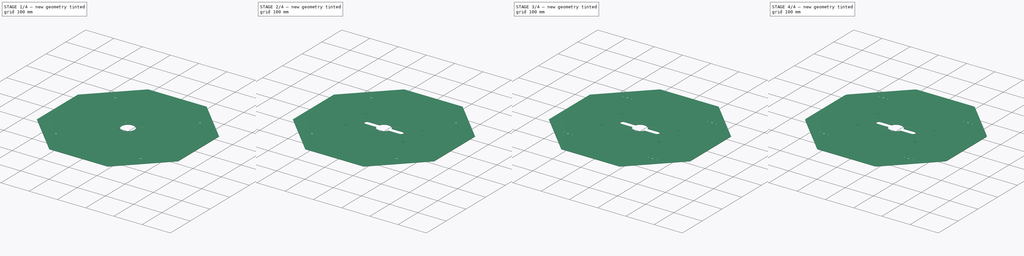
[diagram: build sequence overview — one tinted view per stage of 4, left to right]
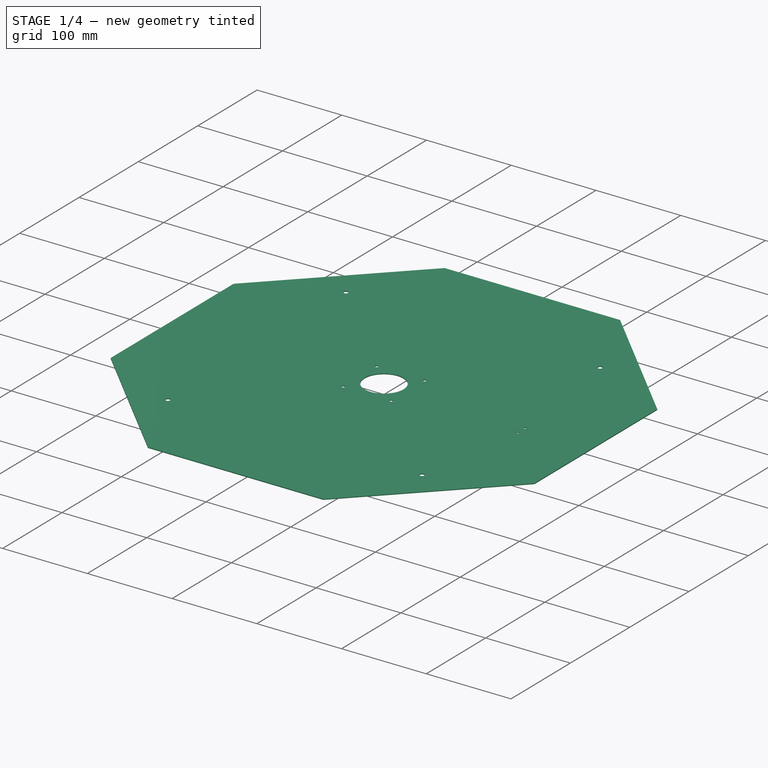
[diagram: stage 1 of 4 — iso view after this stage's code; geometry added in this stage tinted green]
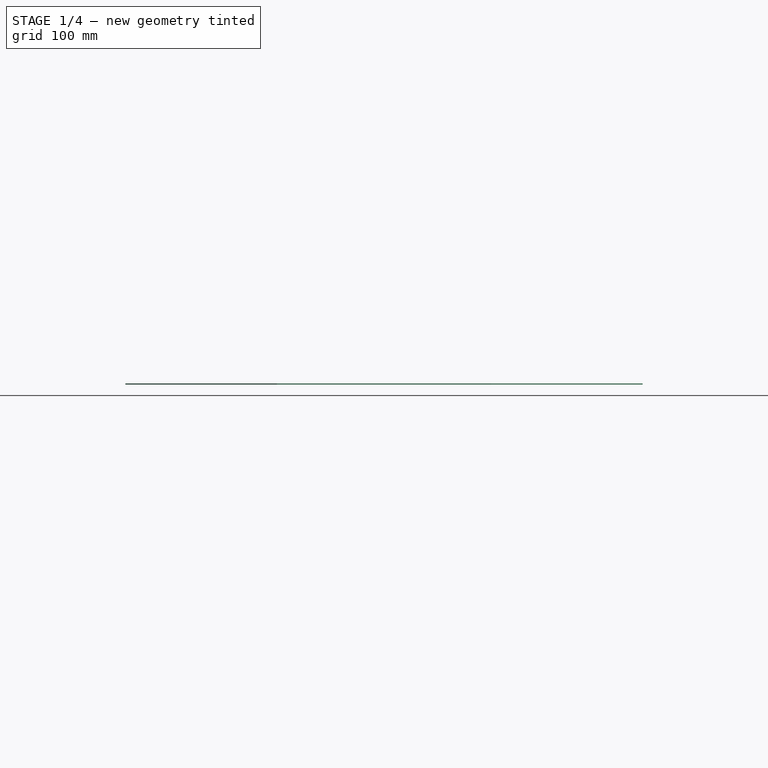
[diagram: stage 1 of 4 — front view after this stage's code; geometry added in this stage tinted green]
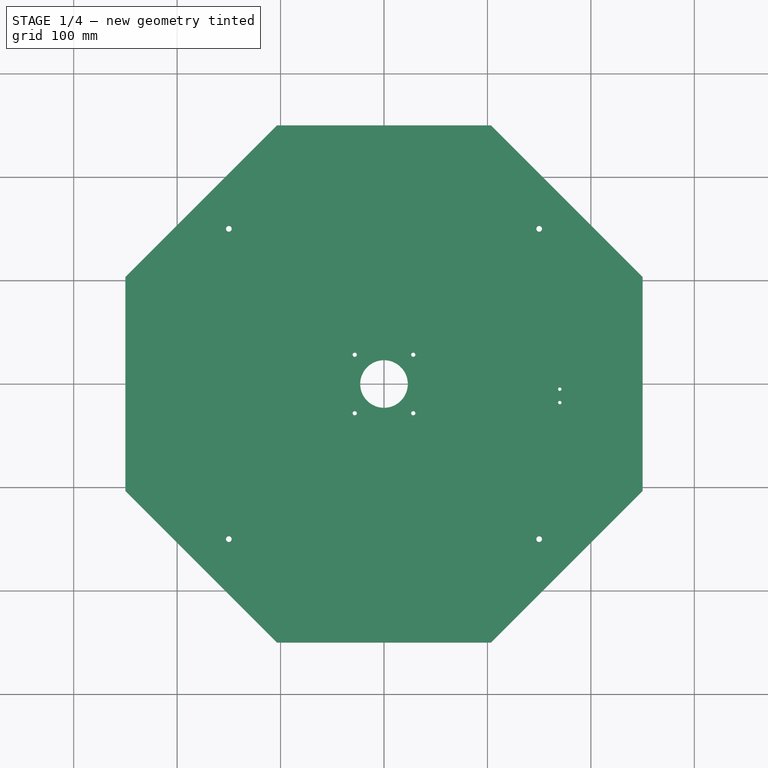
[diagram: stage 1 of 4 — top view after this stage's code; geometry added in this stage tinted green]
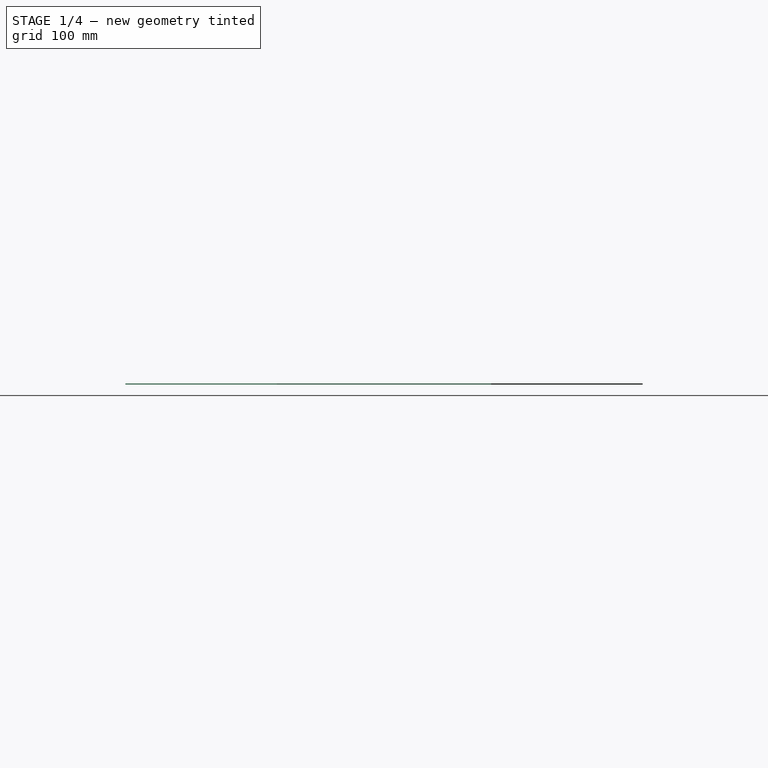
[diagram: stage 1 of 4 — right view after this stage's code; geometry added in this stage tinted green]
FCSTD DOCUMENT  (FreeCAD 0.19R24276 (Git))
Label: Metalicht_v2
License: All rights reserved
LicenseURL: http://en.wikipedia.org/wiki/All_rights_reserved
objects: Sketcher::SketchObject×7, PartDesign::Pocket×6, PartDesign::PolarPattern×2, PartDesign::Pad×1, PartDesign::Fillet×1, PartDesign::Body×1
note: 26 computed .brp shape members not serialized (recipe doc carries the construction recipe); baked Part::Feature solids carry a one-line shape summary decoded from their .brp

FEATURE [Sketcher::SketchObject] Sketch
  FullyConstrained = true
  MapMode = 5
  Support = -> [XY_Plane]
  sketch-geometry (21):
    g0: Circle CenterX=0 CenterY=0 CenterZ=0 NormalX=0 NormalY=0 NormalZ=1 AngleXU=0 Radius=250
    g1: Circle CenterX=0 CenterY=0 CenterZ=0 NormalX=0 NormalY=0 NormalZ=1 AngleXU=0 Radius=23
    g2: Circle CenterX=150 CenterY=150 CenterZ=0 NormalX=0 NormalY=0 NormalZ=1 AngleXU=0 Radius=2.75
    g3: Circle CenterX=-150 CenterY=150 CenterZ=0 NormalX=0 NormalY=0 NormalZ=1 AngleXU=0 Radius=2.75
    g4: Circle CenterX=-150 CenterY=-150 CenterZ=0 NormalX=0 NormalY=0 NormalZ=1 AngleXU=0 Radius=2.75
    g5: Circle CenterX=150 CenterY=-150 CenterZ=0 NormalX=0 NormalY=0 NormalZ=1 AngleXU=0 Radius=2.75
    g6: LineSegment StartX=103.553 StartY=250 StartZ=0 EndX=-103.553 EndY=250 EndZ=0
    g7: LineSegment StartX=-103.553 StartY=250 StartZ=0 EndX=-250 EndY=103.553 EndZ=0
    g8: LineSegment StartX=-250 StartY=103.553 StartZ=0 EndX=-250 EndY=-103.553 EndZ=0
    g9: LineSegment StartX=-250 StartY=-103.553 StartZ=0 EndX=-103.553 EndY=-250 EndZ=0
    g10: LineSegment StartX=-103.553 StartY=-250 StartZ=0 EndX=103.553 EndY=-250 EndZ=0
    g11: LineSegment StartX=103.553 StartY=-250 StartZ=0 EndX=250 EndY=-103.553 EndZ=0
    g12: LineSegment StartX=250 StartY=-103.553 StartZ=0 EndX=250 EndY=103.553 EndZ=0
    g13: LineSegment StartX=250 StartY=103.553 StartZ=0 EndX=103.553 EndY=250 EndZ=0
    g14: Circle CenterX=0 CenterY=0 CenterZ=0 NormalX=0 NormalY=0 NormalZ=1 AngleXU=0 Radius=270.598
    g15: Circle CenterX=28.2843 CenterY=28.2843 CenterZ=0 NormalX=0 NormalY=0 NormalZ=1 AngleXU=0 Radius=2
    g16: Circle CenterX=-28.2843 CenterY=28.2843 CenterZ=0 NormalX=0 NormalY=0 NormalZ=1 AngleXU=0 Radius=2
    g17: Circle CenterX=-28.2843 CenterY=-28.2843 CenterZ=0 NormalX=0 NormalY=0 NormalZ=1 AngleXU=0 Radius=2
    g18: Circle CenterX=28.2843 CenterY=-28.2843 CenterZ=0 NormalX=0 NormalY=0 NormalZ=1 AngleXU=0 Radius=2
    g19: LineSegment StartX=-28.2843 StartY=28.2843 StartZ=0 EndX=28.2843 EndY=28.2843 EndZ=0
    g20: LineSegment StartX=-28.2843 StartY=28.2843 StartZ=0 EndX=-28.2843 EndY=-28.2843 EndZ=0
  constraints (46):
    c: Coincident(g0,g-1)
    c: Diameter(g0) = 500
    c: Coincident(g1,g0)
    c: Diameter(g1) = 46
    c: Equal(g5,g4)
    c: Equal(g4,g3)
    c: Equal(g3,g2)
    c: Diameter(g2) = 5.5
    c: Symmetric(g2,g5,g-1)
    c: Symmetric(g5,g4,g-2)
    c: Symmetric(g3,g2,g-2)
    c: DistanceX(g3,g2) = 300
    c: DistanceY(g5,g2) = 300
    c: Coincident(g6,g7)
    c: Coincident(g7,g8)
    c: Coincident(g8,g9)
    c: Coincident(g9,g10)
    c: Coincident(g10,g11)
    c: Coincident(g11,g12)
    c: Coincident(g12,g13)
    c: Coincident(g13,g6)
    c: Equal(g6, g7-g13) x7
    c: PointOnObject(g6,g14)
    c: PointOnObject(g7,g14)
    c: PointOnObject(g8,g14)
    c: PointOnObject(g9,g14)
    c: PointOnObject(g10,g14)
    c: PointOnObject(g11,g14)
    c: PointOnObject(g12,g14)
    c: PointOnObject(g13,g14)
    c: Coincident(g14,g1)
    c: Tangent(g0,g6)
    c: Horizontal(g6)
    c: Symmetric(g16,g15,g-2)
    c: Symmetric(g17,g16,g-1)
    c: Symmetric(g17,g18,g-2)
    c: Equal(g16,g17)
    c: Equal(g17,g18)
    c: Equal(g18,g15)
    c: Distance(g16,g1) = 40
    c: Coincident(g19,g16)
    c: Coincident(g19,g15)
    c: Coincident(g20,g16)
    c: Coincident(g20,g17)
    c: Equal(g20,g19)
    c: Diameter(g16) = 4
FEATURE [PartDesign::Pad] Pad
  Direction = (1,1,1)
  Length = 1
  Length2 = 100
  Profile = -> Sketch
  Type = 0
FEATURE [Sketcher::SketchObject] Sketch001
  FullyConstrained = true
  MapMode = 5
  Support = -> [XY_Plane]
  sketch-geometry (3):
    g0: Circle CenterX=169.926 CenterY=-5 CenterZ=0 NormalX=0 NormalY=0 NormalZ=1 AngleXU=0 Radius=1.65
    g1: Circle CenterX=169.926 CenterY=-18 CenterZ=0 NormalX=0 NormalY=0 NormalZ=1 AngleXU=0 Radius=1.65
    g2: LineSegment StartX=169.926 StartY=-5 StartZ=0 EndX=169.926 EndY=-18 EndZ=0
  constraints (8):
    c: Equal(g1,g0)
    c: Diameter(g0) = 3.3
    c: Distance(g1,g0) = 13
    c: Coincident(g2,g0)
    c: Coincident(g2,g1)
    c: Angle(g-1,g2) = 1.5708
    c: DistanceY(g0,g-1) = 5
    c: Distance(g-1,g0) = 170
FEATURE [PartDesign::Pocket] Pocket
  BaseFeature = -> Pad
  Length = 5
  Length2 = 100
  Profile = -> Sketch001
  Reversed = true
  Type = 1
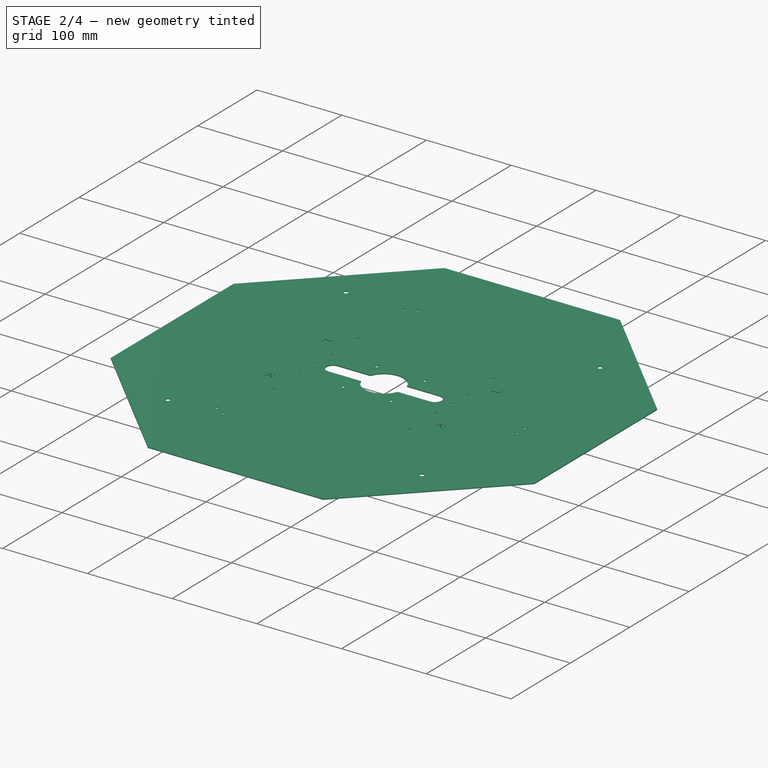
[diagram: stage 2 of 4 — iso view after this stage's code; geometry added in this stage tinted green]
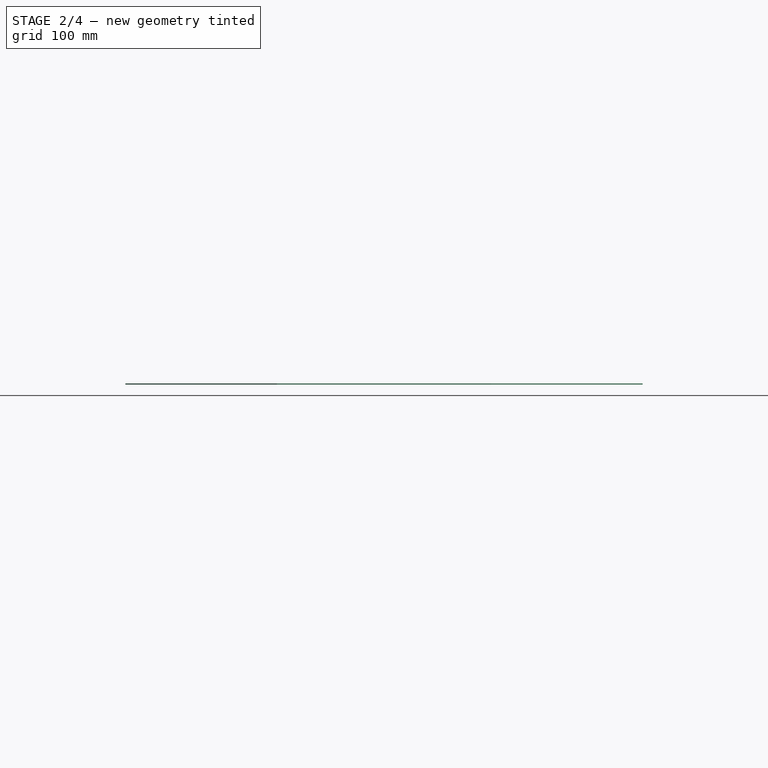
[diagram: stage 2 of 4 — front view after this stage's code; geometry added in this stage tinted green]
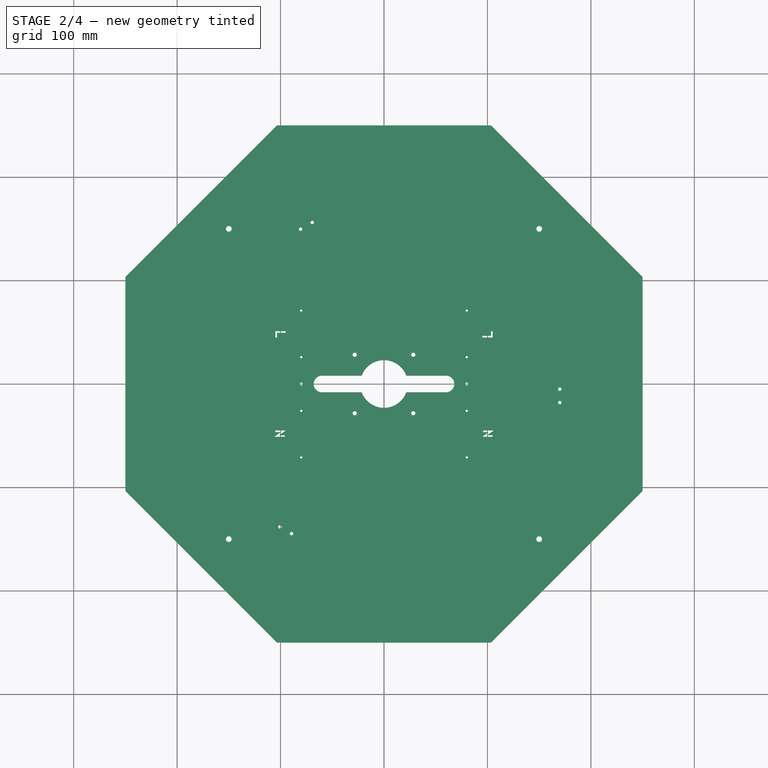
[diagram: stage 2 of 4 — top view after this stage's code; geometry added in this stage tinted green]
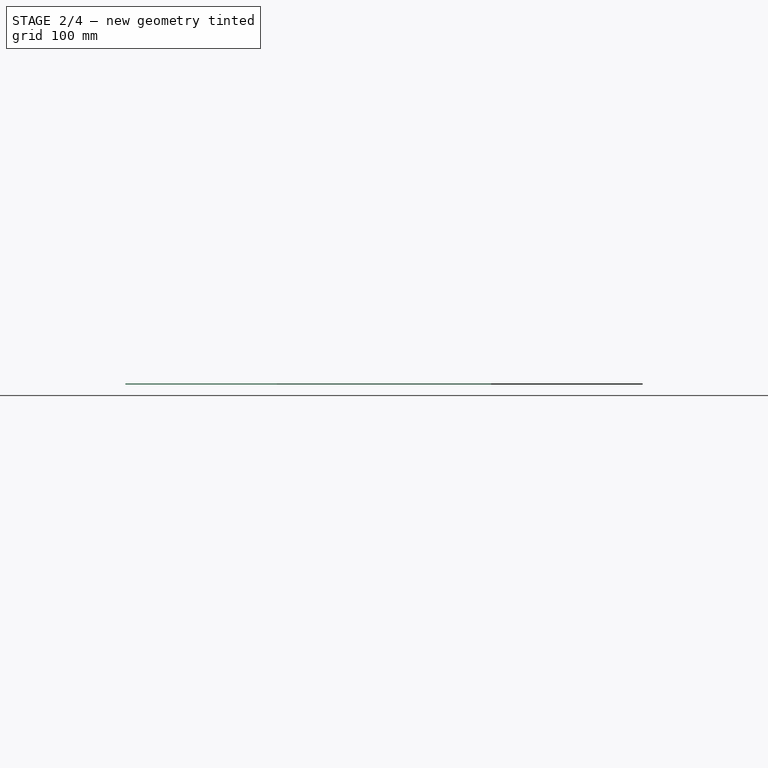
[diagram: stage 2 of 4 — right view after this stage's code; geometry added in this stage tinted green]
FEATURE [PartDesign::PolarPattern] PolarPattern
  Angle = 360
  Axis = -> Sketch001 [N_Axis]
  BaseFeature = -> Pocket
  Occurrences = 3
  Originals = -> [Pocket]
FEATURE [Sketcher::SketchObject] Sketch002
  FullyConstrained = true
  MapMode = 5
  Support = -> [XY_Plane]
  sketch-geometry (4):
    g0: ArcOfCircle CenterX=-60 CenterY=0 CenterZ=0 NormalX=0 NormalY=0 NormalZ=1 AngleXU=0 Radius=8 StartAngle=1.5708 EndAngle=4.71239
    g1: ArcOfCircle CenterX=60 CenterY=0 CenterZ=0 NormalX=0 NormalY=0 NormalZ=1 AngleXU=0 Radius=8 StartAngle=4.71239 EndAngle=7.85398
    g2: LineSegment StartX=-60 StartY=-8 StartZ=0 EndX=60 EndY=-8 EndZ=0
    g3: LineSegment StartX=-60 StartY=8 StartZ=0 EndX=60 EndY=8 EndZ=0
  constraints (9):
    c: Tangent(g0,g3) = 1.5708
    c: Tangent(g0,g2) = -1.5708
    c: Tangent(g2,g1) = -1.5708
    c: Tangent(g3,g1) = 1.5708
    c: Horizontal(g2)
    c: PointOnObject(g0,g-1)
    c: Symmetric(g0,g1,g-2)
    c: Radius(g1) = 8
    c: DistanceX(g3,g3) = 120
FEATURE [PartDesign::Pocket] Pocket001
  BaseFeature = -> PolarPattern
  Length = 5
  Length2 = 100
  Profile = -> Sketch002
  Reversed = true
  Type = 0
FEATURE [Sketcher::SketchObject] Sketch003
  FullyConstrained = true
  MapMode = 5
  Support = -> [XY_Plane]
  sketch-geometry (42):
    g0: Circle CenterX=-80 CenterY=71 CenterZ=0 NormalX=0 NormalY=0 NormalZ=1 AngleXU=0 Radius=1.1
    g1: Circle CenterX=-80 CenterY=26 CenterZ=0 NormalX=0 NormalY=0 NormalZ=1 AngleXU=0 Radius=1.1
    g2: Circle CenterX=-80 CenterY=-26 CenterZ=0 NormalX=0 NormalY=0 NormalZ=1 AngleXU=0 Radius=1.1
    g3: Circle CenterX=-80 CenterY=-71 CenterZ=0 NormalX=0 NormalY=0 NormalZ=1 AngleXU=0 Radius=1.1
    g4: Circle CenterX=-80 CenterY=0 CenterZ=0 NormalX=0 NormalY=0 NormalZ=1 AngleXU=0 Radius=1.45
    g5: LineSegment StartX=-95 StartY=51 StartZ=0 EndX=-105 EndY=51 EndZ=0
    g6: LineSegment StartX=-105 StartY=51 StartZ=0 EndX=-105 EndY=45 EndZ=0
    g7: LineSegment StartX=-105 StartY=45 StartZ=0 EndX=-103.5 EndY=45 EndZ=0
    g8: LineSegment StartX=-103.5 StartY=45 StartZ=0 EndX=-103.5 EndY=49.5 EndZ=0
    g9: LineSegment StartX=-103.5 StartY=49.5 StartZ=0 EndX=-95 EndY=49.5 EndZ=0
    g10: LineSegment StartX=-95 StartY=49.5 StartZ=0 EndX=-95 EndY=51 EndZ=0
    g11: LineSegment StartX=-105 StartY=-45 StartZ=0 EndX=-95 EndY=-45 EndZ=0
    g12: LineSegment StartX=-95 StartY=-45 StartZ=0 EndX=-101.312 EndY=-49.5 EndZ=0
    g13: LineSegment StartX=-101.312 StartY=-49.5 StartZ=0 EndX=-96 EndY=-49.5 EndZ=0
    g14: LineSegment StartX=-96 StartY=-49.5 StartZ=0 EndX=-96 EndY=-51 EndZ=0
    g15: LineSegment StartX=-96 StartY=-51 StartZ=0 EndX=-106 EndY=-51 EndZ=0
    g16: LineSegment StartX=-106 StartY=-51 StartZ=0 EndX=-99.688 EndY=-46.5 EndZ=0
    g17: LineSegment StartX=-99.688 StartY=-46.5 StartZ=0 EndX=-105 EndY=-46.5 EndZ=0
    g18: LineSegment StartX=-105 StartY=-46.5 StartZ=0 EndX=-105 EndY=-45 EndZ=0
    g19: LineSegment StartX=-99.688 StartY=-46.5 StartZ=0 EndX=-98.8172 EndY=-47.7214 EndZ=0
    g20: LineSegment StartX=-105 StartY=-45 StartZ=0 EndX=-105 EndY=45 EndZ=0
    g21: Circle CenterX=80 CenterY=71 CenterZ=0 NormalX=0 NormalY=0 NormalZ=1 AngleXU=0 Radius=1.1
    g22: Circle CenterX=80 CenterY=26 CenterZ=0 NormalX=0 NormalY=0 NormalZ=1 AngleXU=0 Radius=1.1
    g23: Circle CenterX=80 CenterY=0 CenterZ=0 NormalX=0 NormalY=0 NormalZ=1 AngleXU=0 Radius=1.45
    g24: Circle CenterX=80 CenterY=-26 CenterZ=0 NormalX=0 NormalY=0 NormalZ=1 AngleXU=0 Radius=1.1
    g25: Circle CenterX=80 CenterY=-71 CenterZ=0 NormalX=0 NormalY=0 NormalZ=1 AngleXU=0 Radius=1.1
    g26: LineSegment StartX=105 StartY=-51 StartZ=0 EndX=95 EndY=-51 EndZ=0
    g27: LineSegment StartX=95 StartY=-51 StartZ=0 EndX=101.312 EndY=-46.5 EndZ=0
    g28: LineSegment StartX=101.312 StartY=-46.5 StartZ=0 EndX=96 EndY=-46.5 EndZ=0
    g29: LineSegment StartX=96 StartY=-46.5 StartZ=0 EndX=96 EndY=-45 EndZ=0
    g30: LineSegment StartX=96 StartY=-45 StartZ=0 EndX=106 EndY=-45 EndZ=0
    g31: LineSegment StartX=106 StartY=-45 StartZ=0 EndX=99.688 EndY=-49.5 EndZ=0
    g32: LineSegment StartX=99.688 StartY=-49.5 StartZ=0 EndX=105 EndY=-49.5 EndZ=0
    g33: LineSegment StartX=105 StartY=-49.5 StartZ=0 EndX=105 EndY=-51 EndZ=0
    g34: LineSegment StartX=99.688 StartY=-49.5 StartZ=0 EndX=98.8172 EndY=-48.2786 EndZ=0
    g35: LineSegment StartX=95 StartY=45 StartZ=0 EndX=105 EndY=45 EndZ=0
    g36: LineSegment StartX=105 StartY=45 StartZ=0 EndX=105 EndY=51 EndZ=0
    g37: LineSegment StartX=105 StartY=51 StartZ=0 EndX=103.5 EndY=51 EndZ=0
    g38: LineSegment StartX=103.5 StartY=51 StartZ=0 EndX=103.5 EndY=46.5 EndZ=0
    g39: LineSegment StartX=103.5 StartY=46.5 StartZ=0 EndX=95 EndY=46.5 EndZ=0
    g40: LineSegment StartX=95 StartY=46.5 StartZ=0 EndX=95 EndY=45 EndZ=0
    g41: LineSegment StartX=105 StartY=45 StartZ=0 EndX=105 EndY=-45 EndZ=0
  constraints (116):
    c: Equal(g3,g2)
    c: Equal(g2,g1)
    c: Equal(g1,g0)
    c: Vertical(g0,g1)
    c: Symmetric(g0,g3,g-1)
    c: Symmetric(g1,g2,g-1)
    c: DistanceY(g1,g0) = 45
    c: DistanceY(g-1,g1) = 26
    c: Diameter(g0) = 2.2
    c: DistanceX(g1,g-1) = 80
    c: PointOnObject(g4,g-1)
    c: Vertical(g1,g4)
    c: Diameter(g4) = 2.9
    c: Coincident(g5,g6)
    c: Coincident(g6,g7)
    c: Horizontal(g7)
    c: Coincident(g7,g8)
    c: Vertical(g8)
    c: Coincident(g8,g9)
    c: Horizontal(g9)
    c: Coincident(g9,g10)
    c: Coincident(g10,g5)
    c: Vertical(g10)
    c: Horizontal(g11)
    c: Coincident(g11,g12)
    c: Coincident(g12,g13)
    c: Coincident(g13,g14)
    c: Vertical(g14)
    c: Coincident(g14,g15)
    c: Horizontal(g15)
    c: Coincident(g15,g16)
    c: Coincident(g16,g17)
    c: Coincident(g17,g18)
    c: Coincident(g18,g11)
    c: Vertical(g18)
    c: Horizontal(g13)
    c: Horizontal(g17)
    c: Parallel(g16,g12)
    c: Coincident(g19,g16)
    c: Coincident(g20,g11)
    c: Coincident(g20,g6)
    c: Perpendicular(g19,g16)
    c: Equal(g19,g14)
    c: DistanceY(g14,g14) = 1.5
    c: DistanceX(g13,g11) = 1
    c: DistanceX(g15,g17) = 1
    c: DistanceX(g11,g11) = 10
    c: Vertical(g6)
    c: Horizontal(g5)
    c: Equal(g10,g14)
    c: DistanceY(g6,g6) = 6
    c: DistanceX(g5,g5) = 10
    c: Symmetric(g6,g11,g-1)
    c: DistanceY(g20,g20) = 90
    c: DistanceX(g17,g2) = 25
    c: PointOnObject(g19,g12)
    c: Equal(g18,g19)
    c: DistanceY(g14,g11) = 6
    c: Equal(g25,g24)
    c: Equal(g24,g22)
    c: Equal(g22,g21)
    c: Equal(g25,g3)
    c: Symmetric(g3,g25,g-2)
    c: Symmetric(g2,g24,g-2)
    c: Symmetric(g22,g1,g-2)
    c: Symmetric(g0,g21,g-2)
    c: Symmetric(g23,g4,g-2)
    c: Equal(g4,g23)
    c: Equal(g7,g10)
    c: Horizontal(g26)
    c: Coincident(g26,g27)
    c: Coincident(g27,g28)
    c: Horizontal(g28)
    c: Coincident(g28,g29)
    c: Vertical(g29)
    c: Coincident(g29,g30)
    c: Horizontal(g30)
    c: Coincident(g30,g31)
    c: Coincident(g31,g32)
    c: Horizontal(g32)
    c: Coincident(g32,g33)
    c: Coincident(g33,g26)
    c: Vertical(g33)
    c: Coincident(g34,g31)
    c: PointOnObject(g34,g27)
    c: Perpendicular(g27,g34)
    c: Parallel(g31,g27)
    c: Equal(g33,g29)
    c: Equal(g29,g34)
    c: Horizontal(g35)
    c: Coincident(g35,g36)
    c: Vertical(g36)
    c: Coincident(g36,g37)
    c: Horizontal(g37)
    c: Coincident(g37,g38)
    c: Vertical(g38)
    c: Coincident(g38,g39)
    c: Horizontal(g39)
    c: Coincident(g39,g40)
    c: Coincident(g40,g35)
    c: Vertical(g40)
    c: Coincident(g41,g35)
    c: PointOnObject(g41,g30)
    c: Vertical(g41)
    c: Symmetric(g35,g6,g-2)
    c: Equal(g9,g39)
    c: Equal(g37,g40)
    c: Equal(g40,g7)
    c: Equal(g36,g6)
    c: PointOnObject(g32,g41)
    c: Equal(g30,g15)
    c: Parallel(g27,g16)
    c: Equal(g41,g20)
    c: Equal(g29,g19)
    c: Equal(g31,g12)
    c: Equal(g28,g32)
FEATURE [PartDesign::Pocket] Pocket002
  BaseFeature = -> Pocket001
  Length = 5
  Length2 = 100
  Profile = -> Sketch003
  Reversed = true
  Type = 1
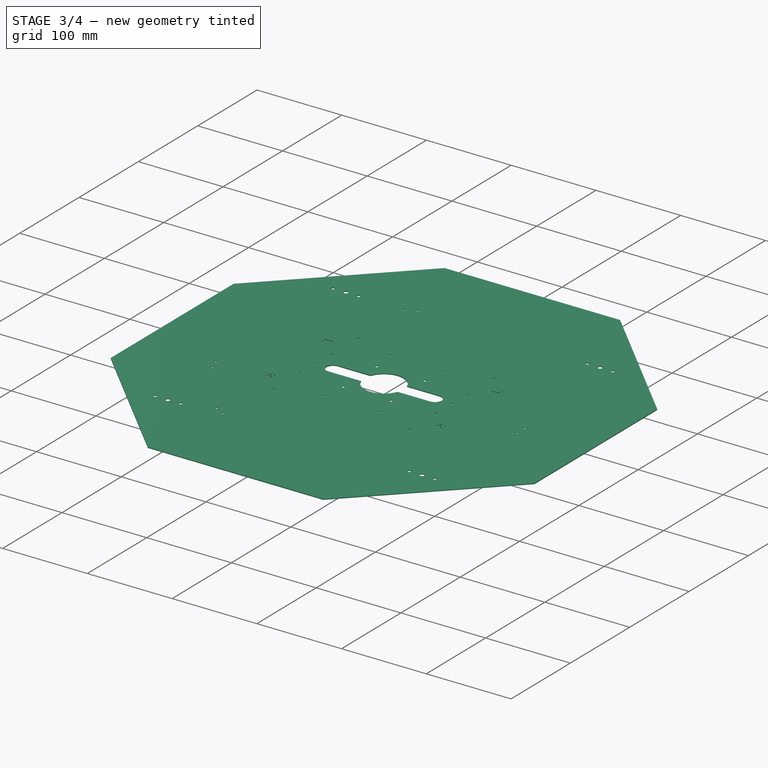
[diagram: stage 3 of 4 — iso view after this stage's code; geometry added in this stage tinted green]
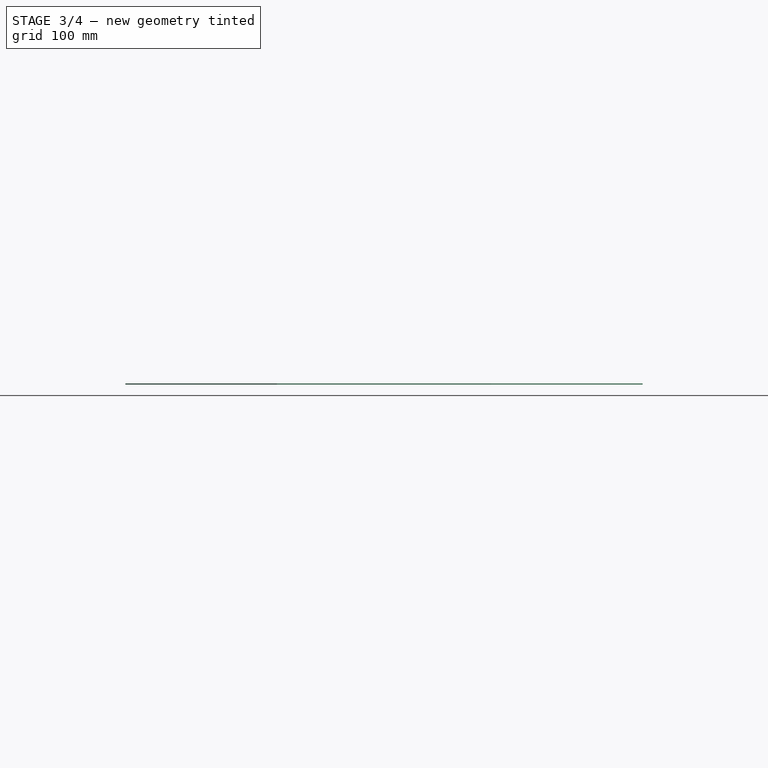
[diagram: stage 3 of 4 — front view after this stage's code; geometry added in this stage tinted green]
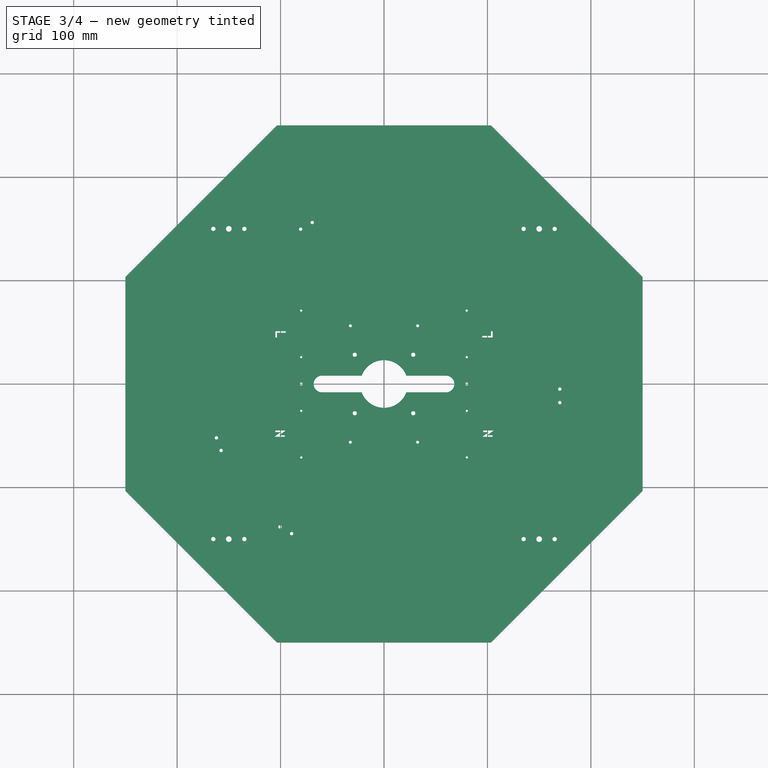
[diagram: stage 3 of 4 — top view after this stage's code; geometry added in this stage tinted green]
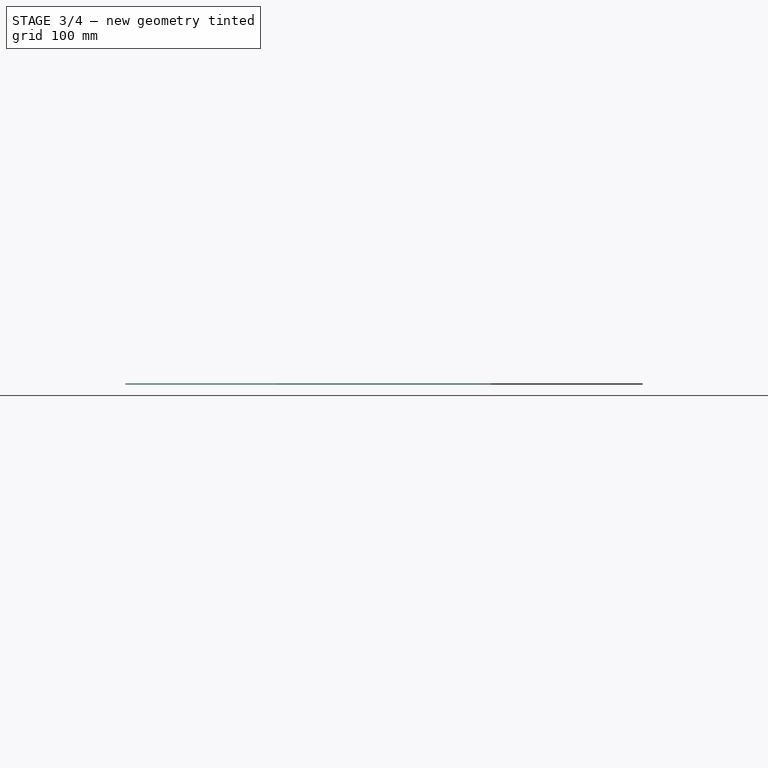
[diagram: stage 3 of 4 — right view after this stage's code; geometry added in this stage tinted green]
FEATURE [Sketcher::SketchObject] Sketch004
  FullyConstrained = true
  MapMode = 5
  Support = -> [XY_Plane]
  sketch-geometry (6):
    g0: Circle CenterX=-32.5 CenterY=-56.2917 CenterZ=0 NormalX=0 NormalY=0 NormalZ=1 AngleXU=0 Radius=1.45
    g1: Circle CenterX=32.5 CenterY=-56.2917 CenterZ=0 NormalX=0 NormalY=0 NormalZ=1 AngleXU=0 Radius=1.45
    g2: Circle CenterX=-32.5 CenterY=56.2917 CenterZ=0 NormalX=0 NormalY=0 NormalZ=1 AngleXU=0 Radius=1.45
    g3: Circle CenterX=32.5 CenterY=56.2917 CenterZ=0 NormalX=0 NormalY=0 NormalZ=1 AngleXU=0 Radius=1.45
    g4: Circle CenterX=0 CenterY=0 CenterZ=0 NormalX=0 NormalY=0 NormalZ=1 AngleXU=0 Radius=65
    g5: LineSegment StartX=0 StartY=0 StartZ=0 EndX=32.5 EndY=56.2917 EndZ=0
  constraints (13):
    c: Coincident(g4,g-1)
    c: PointOnObject(g3,g4)
    c: Radius(g4) = 65
    c: Equal(g2,g0)
    c: Equal(g0,g1)
    c: Equal(g1,g3)
    c: Symmetric(g2,g3,g-2)
    c: Symmetric(g0,g1,g-2)
    c: Symmetric(g1,g3,g-1)
    c: Coincident(g5,g-1)
    c: Coincident(g5,g3)
    c: Angle(g5,g-2) = 0.523599
    c: Diameter(g3) = 2.9
FEATURE [PartDesign::Pocket] Pocket003
  BaseFeature = -> Pocket002
  Length = 5
  Length2 = 100
  Profile = -> Sketch004
  Reversed = true
  Type = 1
FEATURE [Sketcher::SketchObject] Sketch005
  FullyConstrained = true
  MapMode = 5
  Support = -> [XY_Plane]
  sketch-geometry (10):
    g0: Circle CenterX=135 CenterY=150 CenterZ=0 NormalX=0 NormalY=0 NormalZ=1 AngleXU=0 Radius=2.1
    g1: Circle CenterX=165 CenterY=150 CenterZ=0 NormalX=0 NormalY=0 NormalZ=1 AngleXU=0 Radius=2.1
    g2: LineSegment StartX=0 StartY=0 StartZ=0 EndX=150 EndY=150 EndZ=0
    g3: Circle CenterX=-165 CenterY=150 CenterZ=0 NormalX=0 NormalY=0 NormalZ=1 AngleXU=0 Radius=2.1
    g4: Circle CenterX=-135 CenterY=150 CenterZ=0 NormalX=0 NormalY=0 NormalZ=1 AngleXU=0 Radius=2.1
    g5: Circle CenterX=-165 CenterY=-150 CenterZ=0 NormalX=0 NormalY=0 NormalZ=1 AngleXU=0 Radius=2.1
    g6: Circle CenterX=-135 CenterY=-150 CenterZ=0 NormalX=0 NormalY=0 NormalZ=1 AngleXU=0 Radius=2.1
    g7: Circle CenterX=135 CenterY=-150 CenterZ=0 NormalX=0 NormalY=0 NormalZ=1 AngleXU=0 Radius=2.1
    g8: Circle CenterX=165 CenterY=-150 CenterZ=0 NormalX=0 NormalY=0 NormalZ=1 AngleXU=0 Radius=2.1
    g9: LineSegment StartX=150 StartY=150 StartZ=0 EndX=150 EndY=0 EndZ=0
  constraints (23):
    c: Horizontal(g0,g1)
    c: Coincident(g2,g-1)
    c: Equal(g7,g6)
    c: Equal(g6,g5)
    c: Equal(g5,g8)
    c: Equal(g8,g3)
    c: Equal(g3,g4)
    c: Equal(g4,g0)
    c: Equal(g0,g1)
    c: Horizontal(g2,g1)
    c: DistanceX(g2,g2) = 150
    c: DistanceY(g2,g2) = 150
    c: Coincident(g9,g2)
    c: PointOnObject(g9,g-1)
    c: Symmetric(g0,g1,g9)
    c: DistanceX(g0,g1) = 30
    c: Diameter(g1) = 4.2
    c: Symmetric(g0,g4,g-2)
    c: Symmetric(g3,g1,g-2)
    c: Symmetric(g0,g7,g-1)
    c: Symmetric(g1,g8,g-1)
    c: Symmetric(g5,g8,g-2)
    c: Symmetric(g6,g7,g-2)
FEATURE [PartDesign::Pocket] Pocket004
  BaseFeature = -> Pocket003
  Length = 5
  Length2 = 100
  Profile = -> Sketch005
  Reversed = true
  Type = 1
FEATURE [Sketcher::SketchObject] Sketch006
  FullyConstrained = true
  MapMode = 5
  Support = -> [XY_Plane]
  sketch-geometry (4):
    g0: LineSegment StartX=0 StartY=0 StartZ=0 EndX=-159.748 EndY=-58.1434 EndZ=0
    g1: Circle CenterX=-161.971 CenterY=-52.0354 CenterZ=0 NormalX=0 NormalY=0 NormalZ=1 AngleXU=0 Radius=1.65
    g2: Circle CenterX=-157.525 CenterY=-64.2514 CenterZ=0 NormalX=0 NormalY=0 NormalZ=1 AngleXU=0 Radius=1.65
    g3: LineSegment StartX=-161.971 StartY=-52.0354 StartZ=0 EndX=-157.525 EndY=-64.2514 EndZ=0
  constraints (10):
    c: Coincident(g0,g-1)
    c: Distance(g0) = 170
    c: Angle(g0,g-1) = 2.79253
    c: Symmetric(g1,g2,g0)
    c: Equal(g1,g2)
    c: Coincident(g3,g1)
    c: Coincident(g3,g2)
    c: PointOnObject(g0,g3)
    c: Diameter(g1) = 3.3
    c: Distance(g3) = 13
FEATURE [PartDesign::Pocket] Pocket005
  BaseFeature = -> Pocket004
  Length = 5
  Length2 = 100
  Profile = -> Sketch006
  Reversed = true
  Type = 1
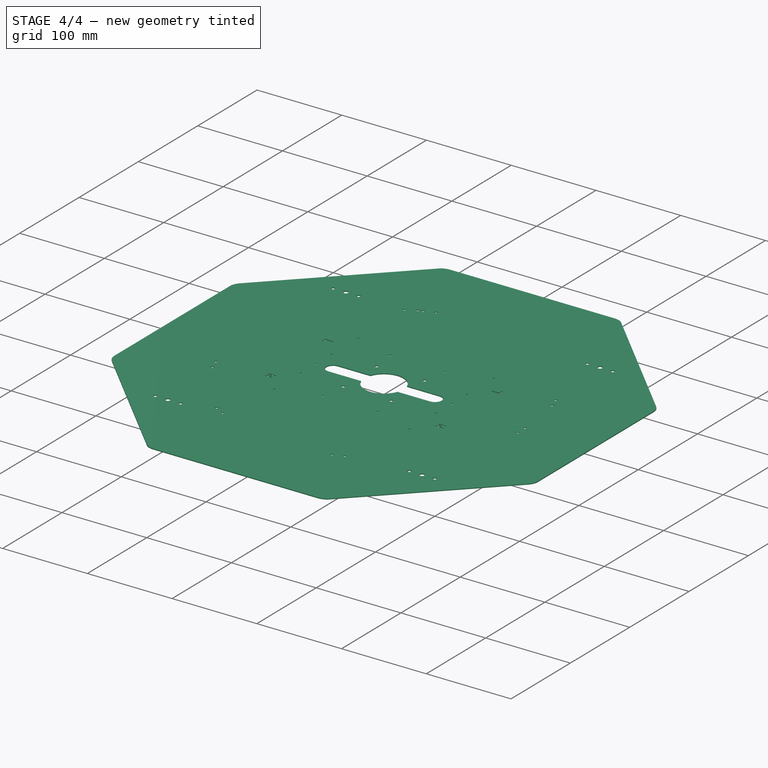
[diagram: stage 4 of 4 — iso view after this stage's code; geometry added in this stage tinted green]
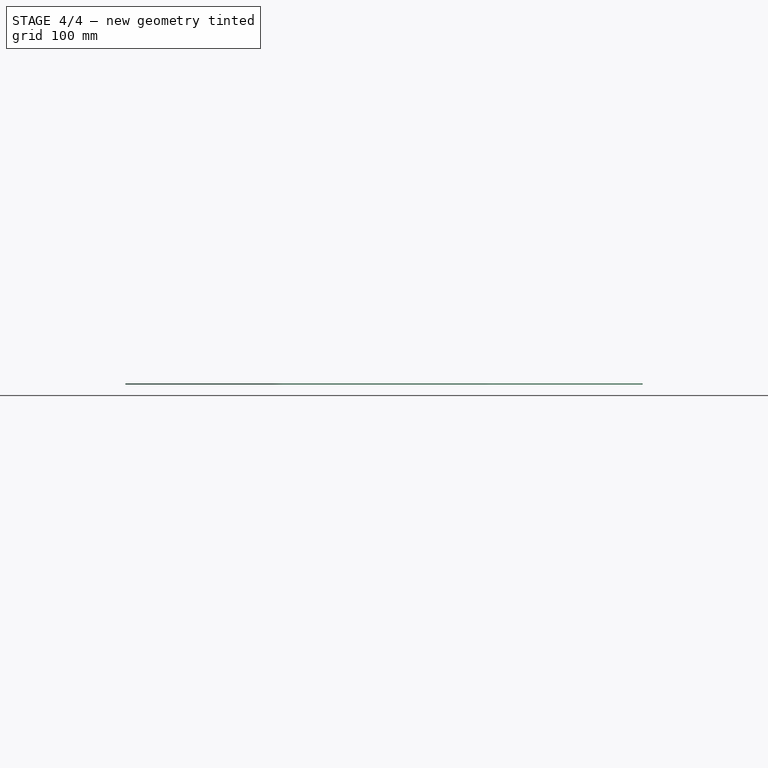
[diagram: stage 4 of 4 — front view after this stage's code; geometry added in this stage tinted green]
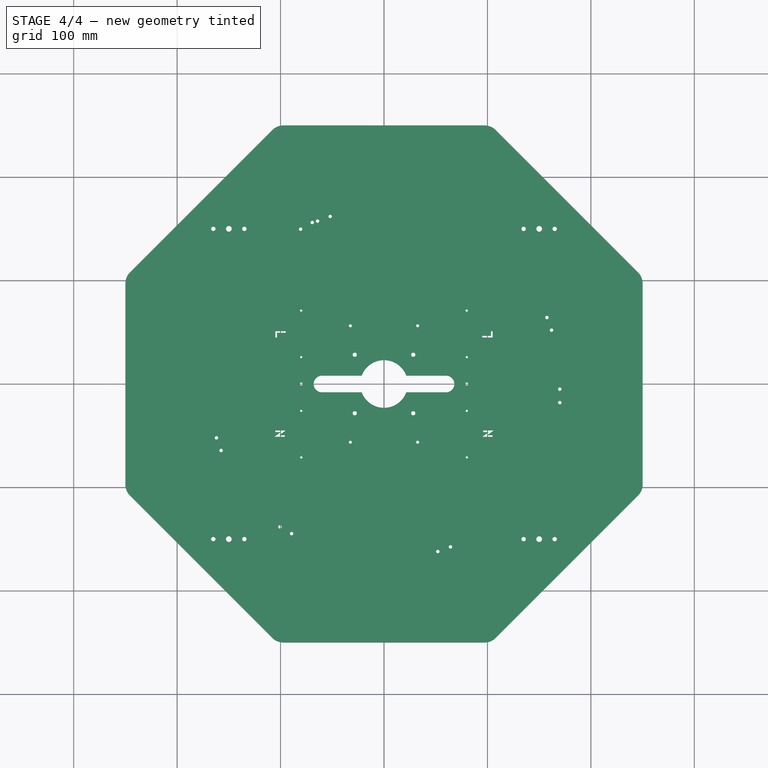
[diagram: stage 4 of 4 — top view after this stage's code; geometry added in this stage tinted green]
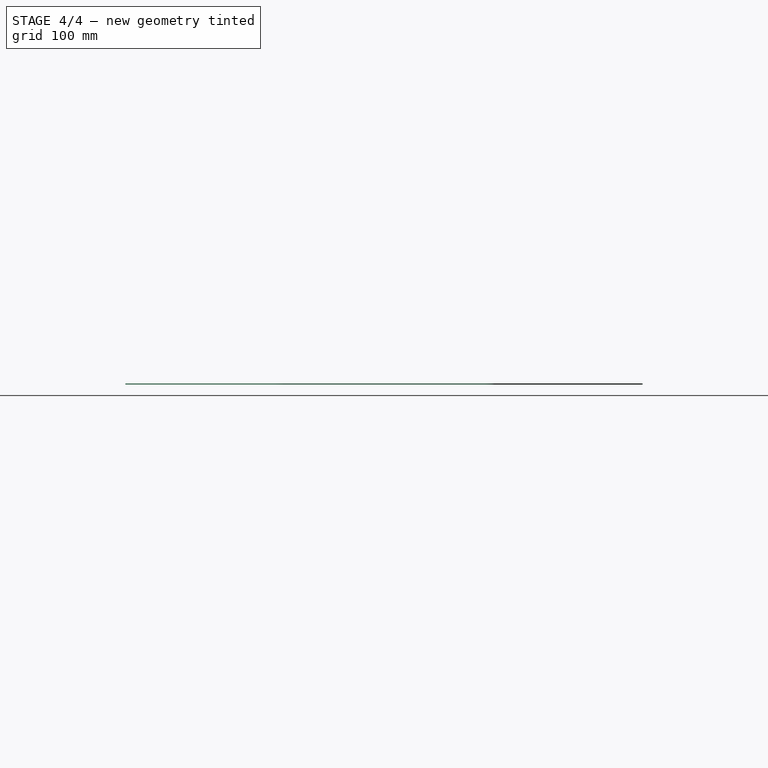
[diagram: stage 4 of 4 — right view after this stage's code; geometry added in this stage tinted green]
FEATURE [PartDesign::PolarPattern] PolarPattern001
  Angle = 360
  Axis = -> Sketch006 [N_Axis]
  BaseFeature = -> Pocket005
  Occurrences = 4
  Originals = -> [Pocket005]
FEATURE [PartDesign::Fillet] Fillet
  Base = -> PolarPattern001 [Edge182,Edge184,Edge183,Edge8,Edge2,Edge1,Edge5,Edge181]
  BaseFeature = -> PolarPattern001
  Radius = 15
  SupportTransform = false
FEATURE [PartDesign::Body] Body
  Group = -> [Sketch,Pad,Sketch001,Pocket,PolarPattern,Sketch002,Pocket001,Sketch003,Pocket002,Sketch004,Pocket003,Sketch005,Pocket004,Sketch006,Pocket005,PolarPattern001,Fillet]
  Origin = -> Origin
  Tip = -> Fillet
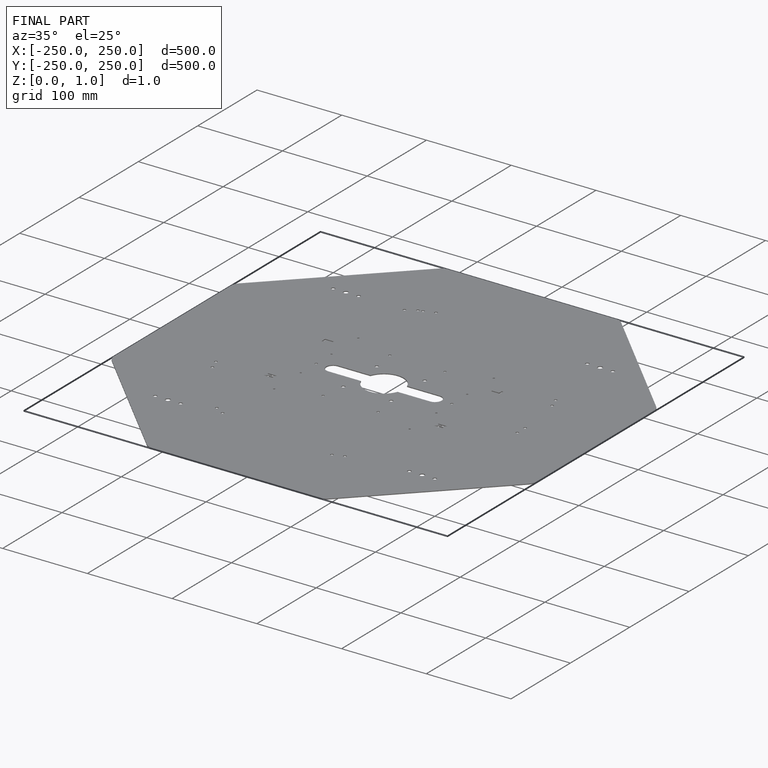
[diagram: finished part — iso view with bounding-box wireframe]
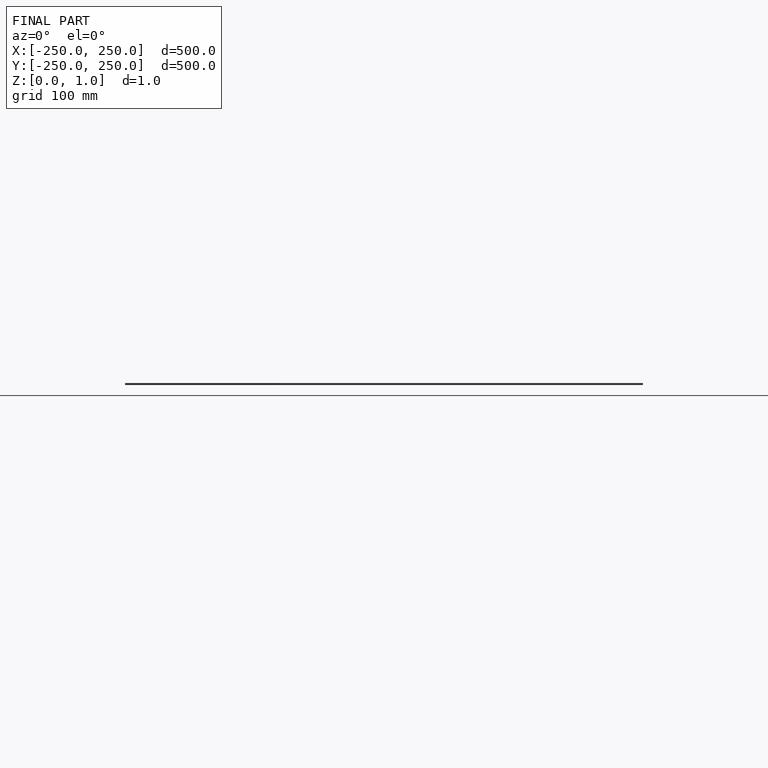
[diagram: finished part — front view with bounding-box wireframe]
